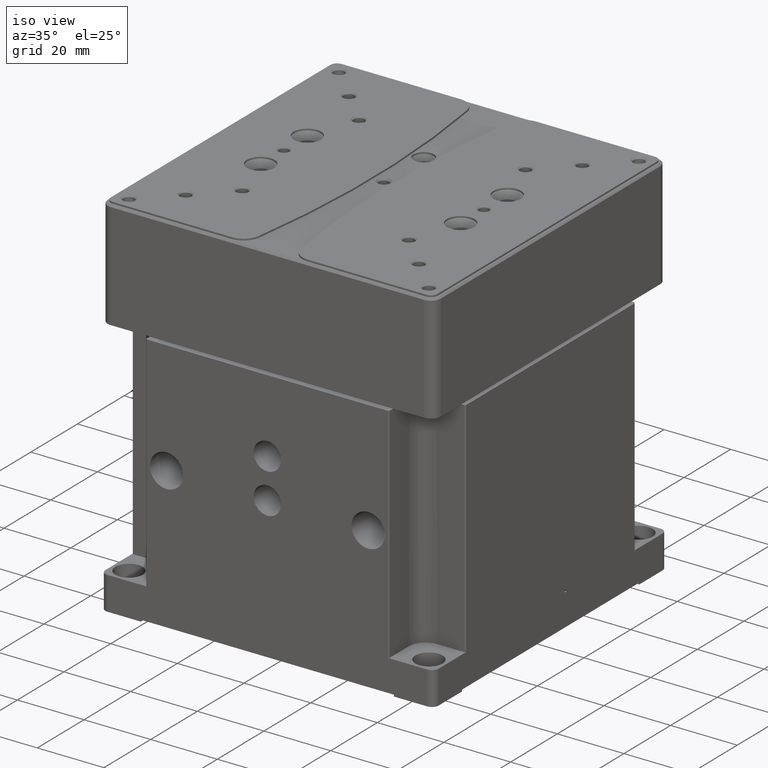
[diagram: clean part render]
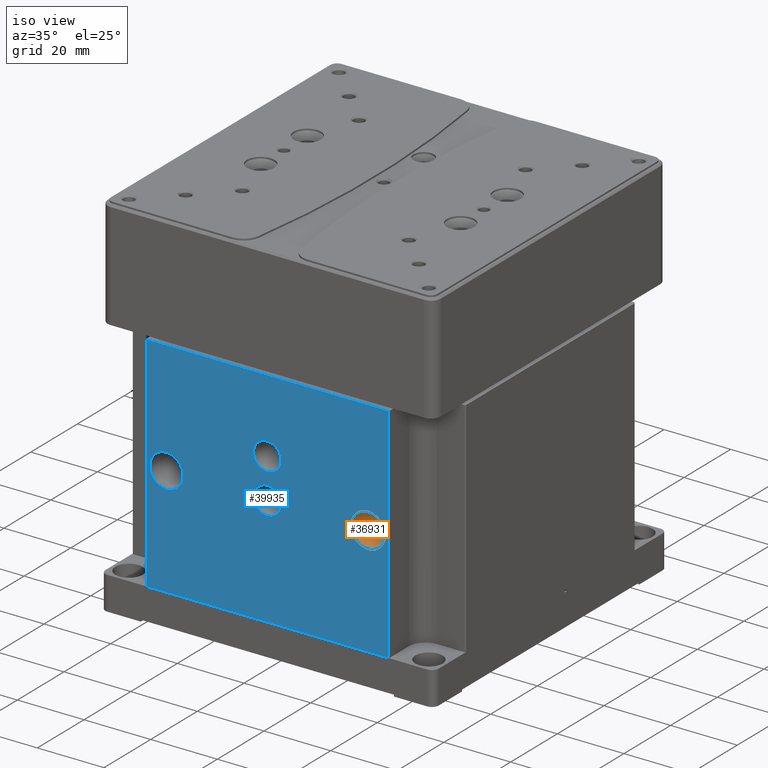
[diagram: same view with the hole feature highlighted: cylindrical wall and planar end face, labeled with their STEP entity ids]
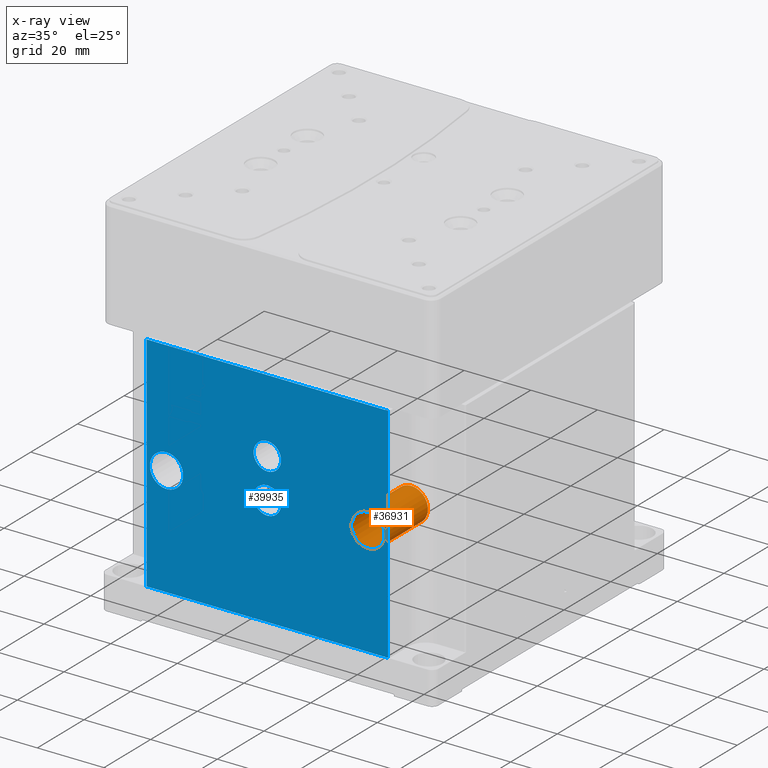
[diagram: x-ray of the same camera — body ghosted, the hole faces saturated]
A machine part, iso view. The highlighted faces form one hole feature of diameter 10 mm: the cylindrical wall (entity #36931, orange) and its adjacent planar end face (entity #39935, blue) — they share a circular edge in the B-rep.
The next image is the same camera in x-ray (body ghosted, the hole faces saturated) — the bore reads through the body.
Wall:
#144 = CARTESIAN_POINT ( 'NONE',  ( 30.25000000000000000, -49.99999999999998579, 33.00000000000000000 ) ) ;
#490 = ORIENTED_EDGE ( 'NONE', *, *, #21113, .F. ) ;
#2923 = FACE_OUTER_BOUND ( 'NONE', #40041, .T. ) ;
#3324 = AXIS2_PLACEMENT_3D ( 'NONE', #25577, #37713, #38533 ) ;
#8901 = CARTESIAN_POINT ( 'NONE',  ( 30.25000000000000000, -31.49999999999998579, 28.00000000000000711 ) ) ;
#11449 = VERTEX_POINT ( 'NONE', #8901 ) ;
#12045 = DIRECTION ( 'NONE',  ( -0.000000000000000000, -1.000000000000000000, -0.000000000000000000 ) ) ;
#12652 = CYLINDRICAL_SURFACE ( 'NONE', #3324, 4.999999999999993783 ) ;
#17950 = DIRECTION ( 'NONE',  ( 0.000000000000000000, 0.000000000000000000, -1.000000000000000000 ) ) ;
#18814 = AXIS2_PLACEMENT_3D ( 'NONE', #144, #26014, #17950 ) ;
#21113 = EDGE_CURVE ( 'NONE', #11449, #11449, #23687, .T. ) ;
#23687 = CIRCLE ( 'NONE', #31822, 4.999999999999993783 ) ;
#24537 = VERTEX_POINT ( 'NONE', #34713 ) ;
#25577 = CARTESIAN_POINT ( 'NONE',  ( 30.25000000000000000, -49.99999999999998579, 33.00000000000000000 ) ) ;
#26014 = DIRECTION ( 'NONE',  ( 0.000000000000000000, 1.000000000000000000, 0.000000000000000000 ) ) ;
#26443 = ORIENTED_EDGE ( 'NONE', *, *, #34914, .F. ) ;
#31559 = CARTESIAN_POINT ( 'NONE',  ( 30.25000000000000000, -31.49999999999998579, 33.00000000000000000 ) ) ;
#31769 = DIRECTION ( 'NONE',  ( 0.000000000000000000, 0.000000000000000000, -1.000000000000000000 ) ) ;
#31822 = AXIS2_PLACEMENT_3D ( 'NONE', #31559, #12045, #31769 ) ;
#33017 = CIRCLE ( 'NONE', #18814, 4.999999999999993783 ) ;
#34508 = EDGE_LOOP ( 'NONE', ( #490 ) ) ;
#34713 = CARTESIAN_POINT ( 'NONE',  ( 30.25000000000000000, -49.99999999999998579, 28.00000000000000711 ) ) ;
#34914 = EDGE_CURVE ( 'NONE', #24537, #24537, #33017, .T. ) ;
#36931 = ADVANCED_FACE ( 'NONE', ( #2923, #41711 ), #12652, .F. ) ;
#37713 = DIRECTION ( 'NONE',  ( -0.000000000000000000, -1.000000000000000000, -0.000000000000000000 ) ) ;
#38533 = DIRECTION ( 'NONE',  ( 0.000000000000000000, 0.000000000000000000, -1.000000000000000000 ) ) ;
#40041 = EDGE_LOOP ( 'NONE', ( #26443 ) ) ;
#41711 = FACE_OUTER_BOUND ( 'NONE', #34508, .T. ) ;
End face:
#144 = CARTESIAN_POINT ( 'NONE',  ( 30.25000000000000000, -49.99999999999998579, 33.00000000000000000 ) ) ;
#691 = AXIS2_PLACEMENT_3D ( 'NONE', #28729, #25331, #12403 ) ;
#2540 = VERTEX_POINT ( 'NONE', #5094 ) ;
#2627 = DIRECTION ( 'NONE',  ( 0.000000000000000000, -0.000000000000000000, -1.000000000000000000 ) ) ;
#4299 = FACE_BOUND ( 'NONE', #17799, .T. ) ;
#4467 = CARTESIAN_POINT ( 'NONE',  ( -30.25000000000000000, -49.99999999999998579, 28.00000000000000355 ) ) ;
#4494 = DIRECTION ( 'NONE',  ( -0.000000000000000000, 0.000000000000000000, 1.000000000000000000 ) ) ;
#4770 = CARTESIAN_POINT ( 'NONE',  ( 36.19999999999998153, -49.99999999999998579, 0.000000000000000000 ) ) ;
#5094 = CARTESIAN_POINT ( 'NONE',  ( 1.592040838891559490E-15, -49.99999999999998579, 28.87300000000000111 ) ) ;
#6206 = LINE ( 'NONE', #26537, #13809 ) ;
#6461 = ORIENTED_EDGE ( 'NONE', *, *, #41177, .T. ) ;
#6729 = DIRECTION ( 'NONE',  ( 0.000000000000000000, 0.000000000000000000, -1.000000000000000000 ) ) ;
#7464 = FACE_BOUND ( 'NONE', #33393, .T. ) ;
#8431 = ORIENTED_EDGE ( 'NONE', *, *, #12545, .T. ) ;
#8728 = AXIS2_PLACEMENT_3D ( 'NONE', #12875, #25802, #6729 ) ;
#9297 = CARTESIAN_POINT ( 'NONE',  ( 0.000000000000000000, -49.99999999999998579, 0.000000000000000000 ) ) ;
#10239 = EDGE_CURVE ( 'NONE', #22924, #21506, #6206, .T. ) ;
#10831 = AXIS2_PLACEMENT_3D ( 'NONE', #33318, #11044, #10834 ) ;
#10834 = DIRECTION ( 'NONE',  ( 0.000000000000000000, 0.000000000000000000, -1.000000000000000000 ) ) ;
#11042 = VECTOR ( 'NONE', #22426, 1000.000000000000000 ) ;
#11044 = DIRECTION ( 'NONE',  ( 0.000000000000000000, 1.000000000000000000, 0.000000000000000000 ) ) ;
#11326 = VECTOR ( 'NONE', #2627, 1000.000000000000000 ) ;
#11955 = LINE ( 'NONE', #24674, #11326 ) ;
#12325 = FACE_BOUND ( 'NONE', #13298, .T. ) ;
#12403 = DIRECTION ( 'NONE',  ( 0.000000000000000000, 0.000000000000000000, -1.000000000000000000 ) ) ;
#12545 = EDGE_CURVE ( 'NONE', #37152, #34306, #11955, .T. ) ;
#12875 = CARTESIAN_POINT ( 'NONE',  ( -30.25000000000000000, -49.99999999999998579, 33.00000000000000000 ) ) ;
#13298 = EDGE_LOOP ( 'NONE', ( #37009 ) ) ;
#13558 = CIRCLE ( 'NONE', #691, 4.126999999999998892 ) ;
#13809 = VECTOR ( 'NONE', #4494, 1000.000000000000000 ) ;
#14224 = CIRCLE ( 'NONE', #10831, 4.126999999999998892 ) ;
#15468 = VERTEX_POINT ( 'NONE', #31586 ) ;
#15514 = DIRECTION ( 'NONE',  ( 0.000000000000000000, -0.000000000000000000, -1.000000000000000000 ) ) ;
#15702 = CARTESIAN_POINT ( 'NONE',  ( -36.19999999999998153, -49.99999999999998579, 2.602085213965210642E-15 ) ) ;
#16837 = EDGE_CURVE ( 'NONE', #17605, #17605, #26321, .T. ) ;
#17087 = EDGE_LOOP ( 'NONE', ( #19622 ) ) ;
#17224 = FACE_BOUND ( 'NONE', #17087, .T. ) ;
#17455 = ORIENTED_EDGE ( 'NONE', *, *, #34914, .T. ) ;
#17605 = VERTEX_POINT ( 'NONE', #4467 ) ;
#17799 = EDGE_LOOP ( 'NONE', ( #37864 ) ) ;
#17950 = DIRECTION ( 'NONE',  ( 0.000000000000000000, 0.000000000000000000, -1.000000000000000000 ) ) ;
#18359 = CARTESIAN_POINT ( 'NONE',  ( 36.19999999999998863, -49.99999999999999289, 67.00000000000000000 ) ) ;
#18481 = PLANE ( 'NONE',  #37696 ) ;
#18678 = ORIENTED_EDGE ( 'NONE', *, *, #25800, .F. ) ;
#18814 = AXIS2_PLACEMENT_3D ( 'NONE', #144, #26014, #17950 ) ;
#19622 = ORIENTED_EDGE ( 'NONE', *, *, #21736, .T. ) ;
#19687 = ORIENTED_EDGE ( 'NONE', *, *, #10239, .T. ) ;
#20471 = CARTESIAN_POINT ( 'NONE',  ( -36.19999999999999574, -49.99999999999998579, 67.00000000000000000 ) ) ;
#20666 = EDGE_CURVE ( 'NONE', #2540, #2540, #14224, .T. ) ;
#21506 = VERTEX_POINT ( 'NONE', #18359 ) ;
#21736 = EDGE_CURVE ( 'NONE', #15468, #15468, #13558, .T. ) ;
#22426 = DIRECTION ( 'NONE',  ( -1.000000000000000000, 0.000000000000000000, -0.000000000000000000 ) ) ;
#22670 = CARTESIAN_POINT ( 'NONE',  ( -49.99999999999998579, -49.99999999999998579, 67.00000000000000000 ) ) ;
#22924 = VERTEX_POINT ( 'NONE', #4770 ) ;
#24537 = VERTEX_POINT ( 'NONE', #34713 ) ;
#24674 = CARTESIAN_POINT ( 'NONE',  ( -36.19999999999998863, -49.99999999999998579, -9.500000000000000000 ) ) ;
#25331 = DIRECTION ( 'NONE',  ( 0.000000000000000000, 1.000000000000000000, 0.000000000000000000 ) ) ;
#25800 = EDGE_CURVE ( 'NONE', #22924, #34306, #29008, .T. ) ;
#25802 = DIRECTION ( 'NONE',  ( 0.000000000000000000, 1.000000000000000000, 0.000000000000000000 ) ) ;
#26014 = DIRECTION ( 'NONE',  ( 0.000000000000000000, 1.000000000000000000, 0.000000000000000000 ) ) ;
#26321 = CIRCLE ( 'NONE', #8728, 4.999999999999997335 ) ;
#26537 = CARTESIAN_POINT ( 'NONE',  ( 36.19999999999998153, -49.99999999999998579, -9.500000000000000000 ) ) ;
#27576 = EDGE_LOOP ( 'NONE', ( #6461, #8431, #18678, #19687 ) ) ;
#28729 = CARTESIAN_POINT ( 'NONE',  ( 1.224646799147362082E-16, -49.99999999999998579, 45.00000000000000000 ) ) ;
#29008 = LINE ( 'NONE', #9297, #11042 ) ;
#29269 = DIRECTION ( 'NONE',  ( -1.000000000000000000, -0.000000000000000000, -0.000000000000000000 ) ) ;
#31220 = DIRECTION ( 'NONE',  ( 0.000000000000000000, -1.000000000000000000, 0.000000000000000000 ) ) ;
#31586 = CARTESIAN_POINT ( 'NONE',  ( 1.224646799147362082E-16, -49.99999999999998579, 40.87299999999999756 ) ) ;
#31629 = CARTESIAN_POINT ( 'NONE',  ( -49.99999999999998579, -49.99999999999998579, -9.500000000000000000 ) ) ;
#33017 = CIRCLE ( 'NONE', #18814, 4.999999999999993783 ) ;
#33318 = CARTESIAN_POINT ( 'NONE',  ( 1.592040838891559490E-15, -49.99999999999998579, 33.00000000000000000 ) ) ;
#33393 = EDGE_LOOP ( 'NONE', ( #17455 ) ) ;
#34306 = VERTEX_POINT ( 'NONE', #15702 ) ;
#34713 = CARTESIAN_POINT ( 'NONE',  ( 30.25000000000000000, -49.99999999999998579, 28.00000000000000711 ) ) ;
#34914 = EDGE_CURVE ( 'NONE', #24537, #24537, #33017, .T. ) ;
#35835 = LINE ( 'NONE', #22670, #38314 ) ;
#36506 = FACE_OUTER_BOUND ( 'NONE', #27576, .T. ) ;
#37009 = ORIENTED_EDGE ( 'NONE', *, *, #20666, .T. ) ;
#37152 = VERTEX_POINT ( 'NONE', #20471 ) ;
#37696 = AXIS2_PLACEMENT_3D ( 'NONE', #31629, #31220, #15514 ) ;
#37864 = ORIENTED_EDGE ( 'NONE', *, *, #16837, .T. ) ;
#38314 = VECTOR ( 'NONE', #29269, 1000.000000000000000 ) ;
#39935 = ADVANCED_FACE ( 'NONE', ( #36506, #7464, #4299, #17224, #12325 ), #18481, .T. ) ;
#41177 = EDGE_CURVE ( 'NONE', #21506, #37152, #35835, .T. ) ;